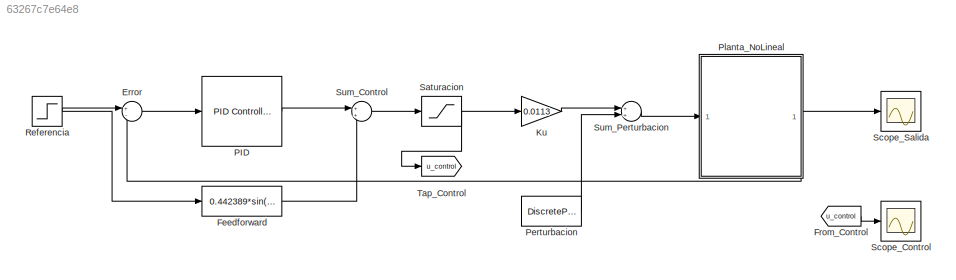
MODEL slx_63267c7e64e8
KIND model
CONFIG AbsTol = auto
CONFIG EnableMultiTasking = off
CONFIG FixedStep = auto
CONFIG MaxStep = auto
CONFIG MinStep = auto
CONFIG RelTol = 1e-3
CONFIG SampleTimeConstraint = Unconstrained
CONFIG SolverName = ode45
CONFIG StartTime = 0.0
CONFIG StopTime = 30
BLOCK [Sum] Error
  Inputs = +-
BLOCK [Fcn] Feedforward
  Expr = 0.442389*sin(u(1))
BLOCK [From] From_Control
  GotoTag = u_control
BLOCK [Gain] Ku
  Gain = 0.0113
BLOCK [Reference] PID  REF=slpidlib/PID Controller
  SourceBlock = slpidlib/PID Controller
  SourceType = PID 1dof
BLOCK [DiscretePulseGenerator] Perturbacion
  Amplitude = 0.002
  Period = 3
  PulseType = Time based
  PulseWidth = 20
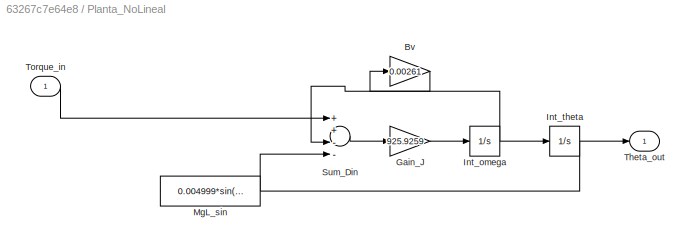
BLOCK [SubSystem] Planta_NoLineal
BLOCK [Gain] Planta_NoLineal/Bv
  Gain = 0.00261
BLOCK [Gain] Planta_NoLineal/Gain_J
  Gain = 925.9259
BLOCK [Integrator] Planta_NoLineal/Int_omega
BLOCK [Integrator] Planta_NoLineal/Int_theta
  InitialCondition = 0.87266
BLOCK [Fcn] Planta_NoLineal/MgL_sin
  Expr = 0.004999*sin(u(1))
BLOCK [Sum] Planta_NoLineal/Sum_Din
  Inputs = ++--
BLOCK [Outport] Planta_NoLineal/Theta_out
BLOCK [Inport] Planta_NoLineal/Torque_in
BLOCK [Step] Referencia
  After = 0.87266
  SampleTime = 0
  Time = 0
BLOCK [Saturate] Saturacion
  LowerLimit = -1
  UpperLimit = 1
BLOCK [Scope] Scope_Control
  ActiveDisplayYMaximum = 0.41456363428830739
  ActiveDisplayYMinimum = 0.0935756496598949
  Floating = off
  GraphicalSettings = {"Style":{"BackgroundColor":[0.12941176470588237,0.12941176470588237,0.12941176470588237],"AxesColor":[0.07058823529411765,0.07058823529411765,0.07058823529411765],"LabelsColor":[0.8509803921568627,0.8509803921568627,0.8509803921568627],"PreserveColors":false,"Visible":[true],"LineStyle":["-"],"LineWidth":[1.5],"BarWidth":[0.9],"LineColor":["auto"],"LineFaceAlpha":[1],"LineEdgeAlpha":[1],"Marker":...<+1908ch>
  MultipleDisplayCache = [{"MaxYLimMag":0.41456363428830739,"MaxYLimReal":0.41456363428830739,"MinYLimMag":0.0935756496598949,"MinYLimReal":0.0935756496598949,"PlotAsMagnitudePhase":false,"ShowGrid":true,"ShowLegend":false,"Title":"%<SignalLabel>","YLabel":""}]
  NumInputPorts = 1
  ScopeFrameLocation = window
  WasSavedAsWebScope = on
  WindowPosition = [488.000000,222.000000,560.000000,420.000000,]
BLOCK [Scope] Scope_Salida
  ActiveDisplayYMaximum = 0.90242872962076159
  ActiveDisplayYMinimum = 0.85046003073746668
  Floating = off
  GraphicalSettings = {"Style":{"BackgroundColor":[0.12941176470588237,0.12941176470588237,0.12941176470588237],"AxesColor":[0.07058823529411765,0.07058823529411765,0.07058823529411765],"LabelsColor":[0.8509803921568627,0.8509803921568627,0.8509803921568627],"PreserveColors":false,"Visible":[true],"LineStyle":["-"],"LineWidth":[1.5],"BarWidth":[0.9],"LineColor":["auto"],"LineFaceAlpha":[1],"LineEdgeAlpha":[1],"Marker":...<+1912ch>
  MultipleDisplayCache = [{"MaxYLimMag":0.90242872962076159,"MaxYLimReal":0.90242872962076159,"MinYLimMag":0.85046003073746668,"MinYLimReal":0.85046003073746668,"PlotAsMagnitudePhase":false,"ShowGrid":true,"ShowLegend":false,"Title":"%<SignalLabel>","YLabel":""}]
  NumInputPorts = 1
  ScopeFrameLocation = window
  Visible = on
  WasSavedAsWebScope = on
  WindowPosition = [488.000000,222.000000,560.000000,420.000000,]
BLOCK [Sum] Sum_Control
BLOCK [Sum] Sum_Perturbacion
BLOCK [Goto] Tap_Control
  GotoTag = u_control
LINE Error:1 -> PID:1
LINE Feedforward:1 -> Sum_Control:2
LINE From_Control:1 -> Scope_Control:1
LINE Ku:1 -> Sum_Perturbacion:1
LINE PID:1 -> Sum_Control:1
LINE Perturbacion:1 -> Sum_Perturbacion:2
LINE Planta_NoLineal/Bv:1 -> Planta_NoLineal/Sum_Din:3
LINE Planta_NoLineal/Gain_J:1 -> Planta_NoLineal/Int_omega:1
NET Planta_NoLineal/Int_omega:1 -> Planta_NoLineal/Bv:1, Planta_NoLineal/Int_theta:1
NET Planta_NoLineal/Int_theta:1 -> Planta_NoLineal/MgL_sin:1, Planta_NoLineal/Theta_out:1
LINE Planta_NoLineal/MgL_sin:1 -> Planta_NoLineal/Sum_Din:4
LINE Planta_NoLineal/Sum_Din:1 -> Planta_NoLineal/Gain_J:1
LINE Planta_NoLineal/Torque_in:1 -> Planta_NoLineal/Sum_Din:1
NET Planta_NoLineal:1 -> Error:2, Scope_Salida:1
NET Referencia:1 -> Error:1, Feedforward:1
NET Saturacion:1 -> Ku:1, Tap_Control:1
LINE Sum_Control:1 -> Saturacion:1
LINE Sum_Perturbacion:1 -> Planta_NoLineal:1
note: NET lines group one-source signal fan-out (src -> all destinations, sorted); 1:1 wires keep LINE
